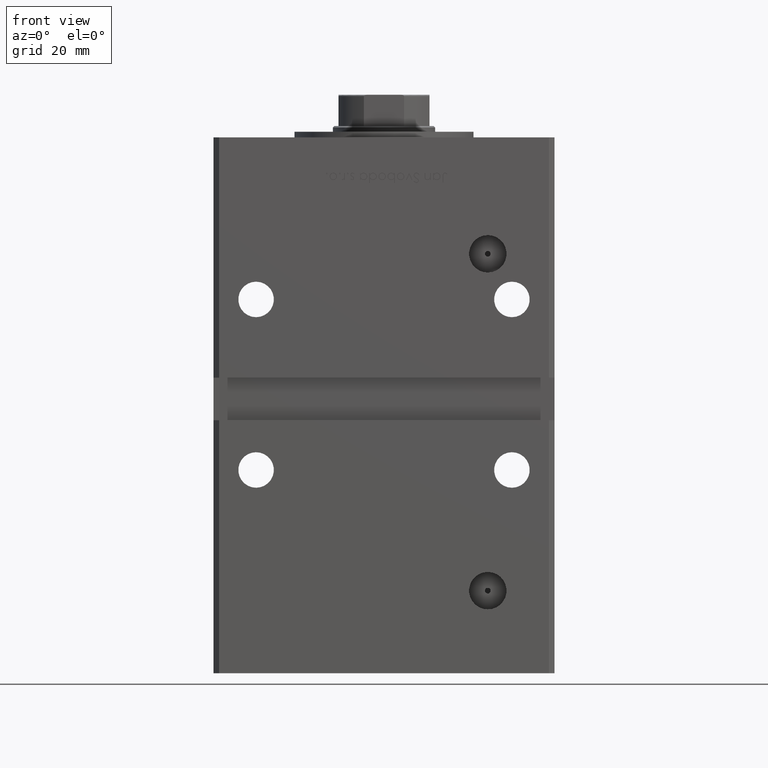
[diagram: clean part render]
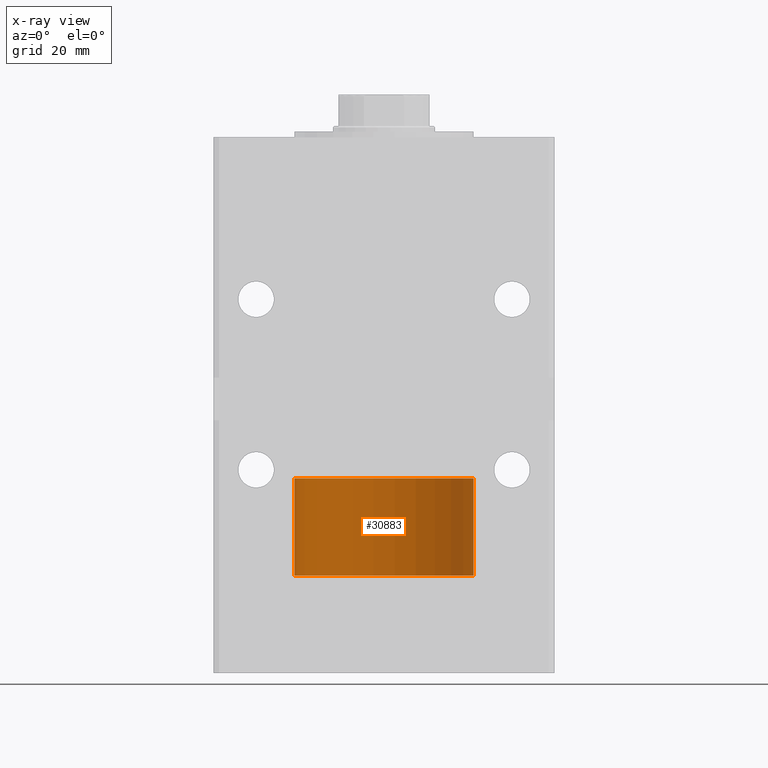
[diagram: x-ray — body ghosted, one internal face saturated and labeled with its STEP entity id]
A machine part, front view, then the same camera in x-ray: the body is ghosted and one INTERNAL B-rep face — a face not visible from any outside direction — is saturated and labeled: STEP entity #30883.
In plain terms, the highlighted cylindrical surface (partial cylindrical patch) has radius 31.5 mm, axis along (-0, -0, -1).
Its self-contained STEP definition (entity closure, byte-faithful):
#601 = AXIS2_PLACEMENT_3D ( 'NONE', #30879, #47228, #10510 ) ;
#757 = DIRECTION ( 'NONE',  ( -0.000000000000000000, -0.000000000000000000, -1.000000000000000000 ) ) ;
#1303 = VECTOR ( 'NONE', #40121, 1000.000000000000000 ) ;
#1362 = ORIENTED_EDGE ( 'NONE', *, *, #36359, .F. ) ;
#3533 = EDGE_CURVE ( 'NONE', #18043, #19566, #51047, .T. ) ;
#3932 = CARTESIAN_POINT ( 'NONE',  ( 31.50000000000000000, 3.857637417314162689E-15, 34.25000000000000000 ) ) ;
#4535 = CARTESIAN_POINT ( 'NONE',  ( 0.000000000000000000, 0.000000000000000000, 34.25000000000000000 ) ) ;
#5740 = AXIS2_PLACEMENT_3D ( 'NONE', #12359, #28701, #37278 ) ;
#10307 = DIRECTION ( 'NONE',  ( -0.000000000000000000, -0.000000000000000000, -1.000000000000000000 ) ) ;
#10510 = DIRECTION ( 'NONE',  ( 1.000000000000000000, 0.000000000000000000, 0.000000000000000000 ) ) ;
#12359 = CARTESIAN_POINT ( 'NONE',  ( 0.000000000000000000, 0.000000000000000000, 34.25000000000000000 ) ) ;
#13635 = DIRECTION ( 'NONE',  ( -1.000000000000000000, 0.000000000000000000, 0.000000000000000000 ) ) ;
#14595 = CARTESIAN_POINT ( 'NONE',  ( -31.50000000000000000, 0.000000000000000000, 34.25000000000000000 ) ) ;
#14989 = EDGE_LOOP ( 'NONE', ( #1362, #22423, #24274, #31582 ) ) ;
#18043 = VERTEX_POINT ( 'NONE', #14595 ) ;
#19566 = VERTEX_POINT ( 'NONE', #19797 ) ;
#19797 = CARTESIAN_POINT ( 'NONE',  ( -31.50000000000000000, 0.000000000000000000, 0.000000000000000000 ) ) ;
#22423 = ORIENTED_EDGE ( 'NONE', *, *, #44560, .T. ) ;
#23694 = CIRCLE ( 'NONE', #601, 31.50000000000000000 ) ;
#24274 = ORIENTED_EDGE ( 'NONE', *, *, #37031, .T. ) ;
#28701 = DIRECTION ( 'NONE',  ( 0.000000000000000000, 0.000000000000000000, 1.000000000000000000 ) ) ;
#30879 = CARTESIAN_POINT ( 'NONE',  ( 0.000000000000000000, 0.000000000000000000, 0.000000000000000000 ) ) ;
#30883 = ADVANCED_FACE ( 'NONE', ( #46576 ), #49557, .T. ) ;
#31115 = AXIS2_PLACEMENT_3D ( 'NONE', #4535, #757, #13635 ) ;
#31582 = ORIENTED_EDGE ( 'NONE', *, *, #3533, .F. ) ;
#31595 = CARTESIAN_POINT ( 'NONE',  ( 31.50000000000000000, 3.857637417314162689E-15, 34.25000000000000000 ) ) ;
#34820 = CARTESIAN_POINT ( 'NONE',  ( 31.50000000000000000, 3.857637417314162689E-15, 0.000000000000000000 ) ) ;
#34830 = CIRCLE ( 'NONE', #5740, 31.50000000000000000 ) ;
#36081 = LINE ( 'NONE', #3932, #1303 ) ;
#36359 = EDGE_CURVE ( 'NONE', #36495, #18043, #34830, .T. ) ;
#36478 = VERTEX_POINT ( 'NONE', #34820 ) ;
#36495 = VERTEX_POINT ( 'NONE', #31595 ) ;
#37031 = EDGE_CURVE ( 'NONE', #36478, #19566, #23694, .T. ) ;
#37278 = DIRECTION ( 'NONE',  ( 1.000000000000000000, 0.000000000000000000, 0.000000000000000000 ) ) ;
#40121 = DIRECTION ( 'NONE',  ( -0.000000000000000000, -0.000000000000000000, -1.000000000000000000 ) ) ;
#44560 = EDGE_CURVE ( 'NONE', #36495, #36478, #36081, .T. ) ;
#45142 = VECTOR ( 'NONE', #10307, 1000.000000000000000 ) ;
#45979 = CARTESIAN_POINT ( 'NONE',  ( -31.50000000000000000, 0.000000000000000000, 34.25000000000000000 ) ) ;
#46576 = FACE_OUTER_BOUND ( 'NONE', #14989, .T. ) ;
#47228 = DIRECTION ( 'NONE',  ( 0.000000000000000000, 0.000000000000000000, 1.000000000000000000 ) ) ;
#49557 = CYLINDRICAL_SURFACE ( 'NONE', #31115, 31.50000000000000000 ) ;
#51047 = LINE ( 'NONE', #45979, #45142 ) ;